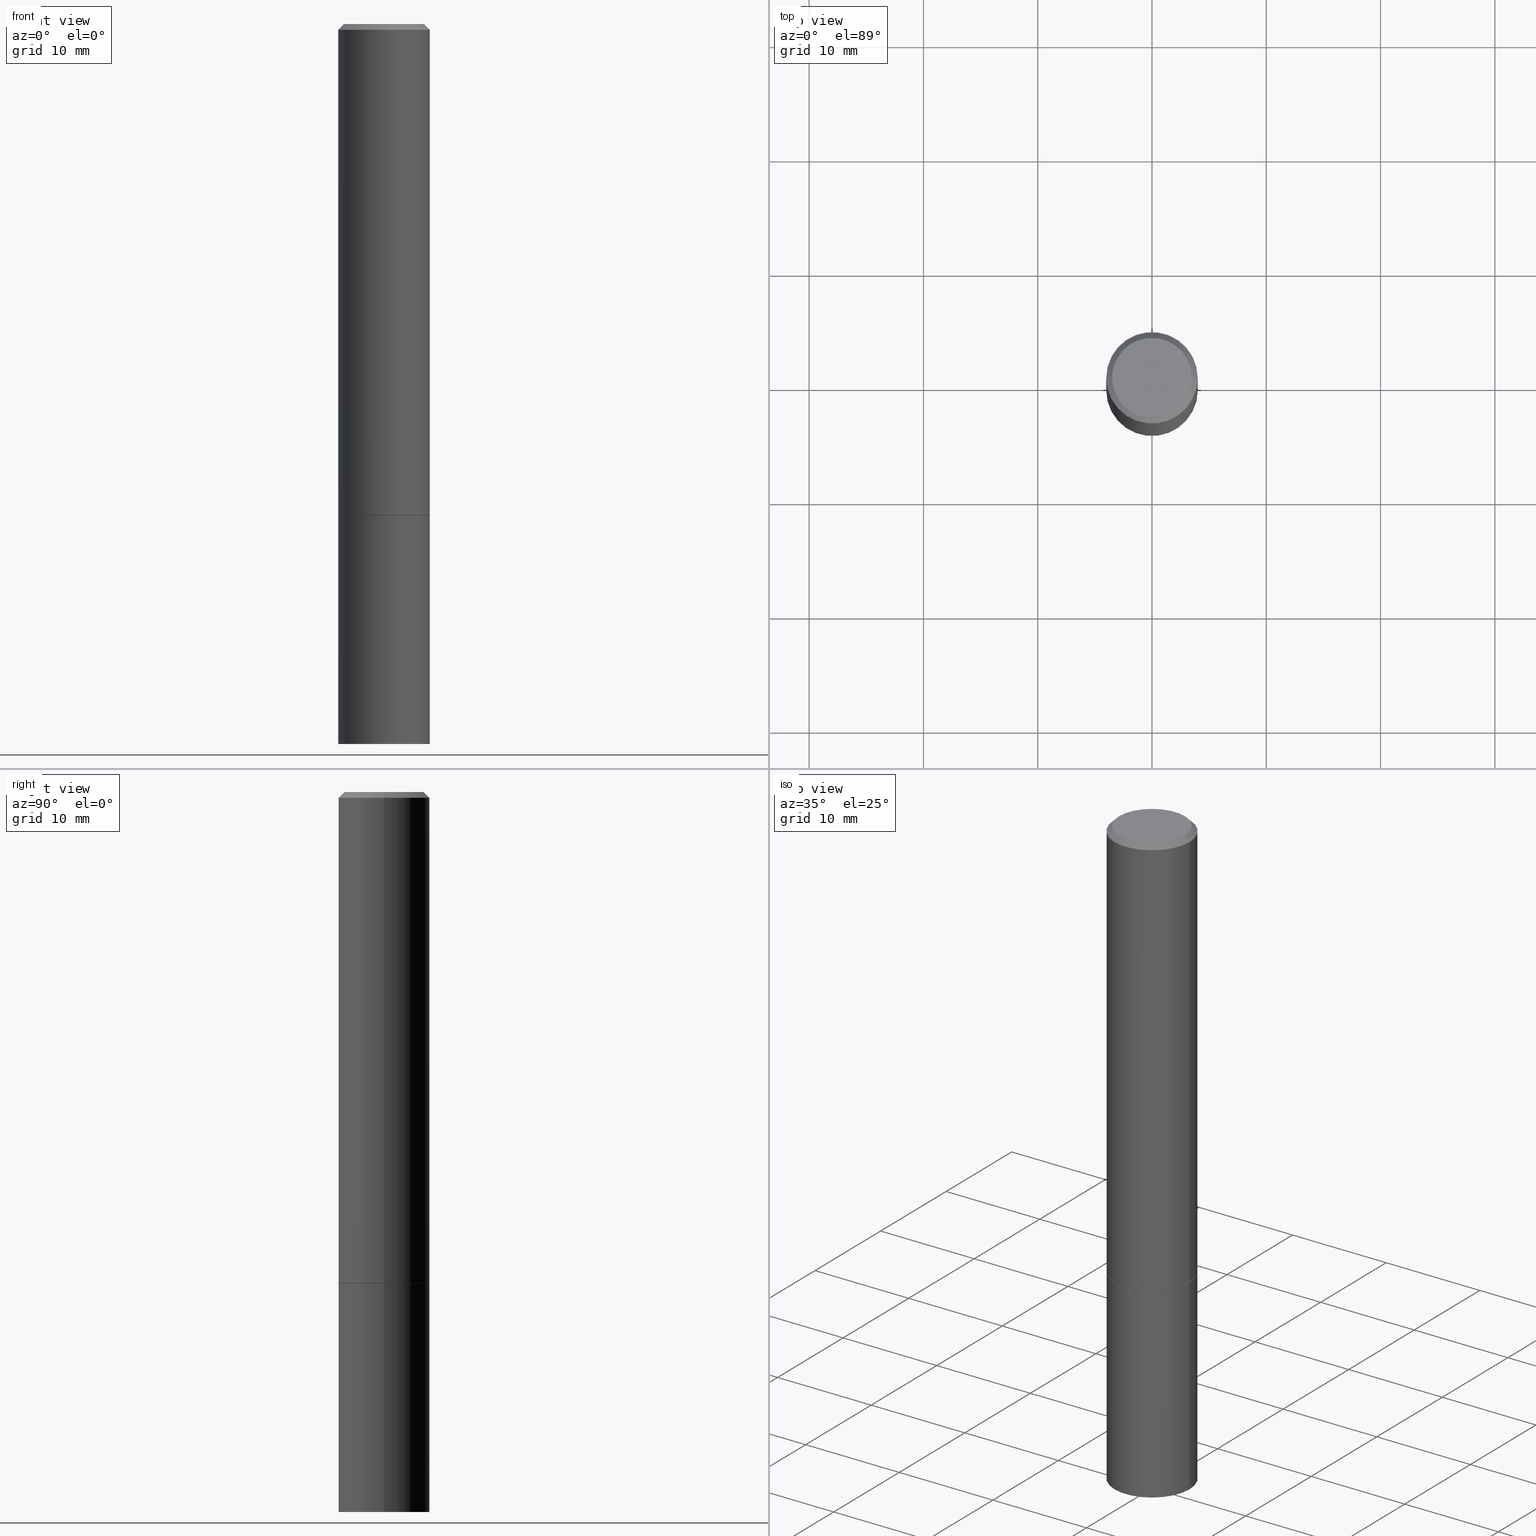
[diagram: canonical four-view strip — front | top / right | iso, engineering-drawing reading convention]
A machine part, canonical four-view strip (front | top / right | iso — engineering-drawing reading convention). The complete STEP part file that produces these views, byte-faithful:
ISO-10303-21;
HEADER;
FILE_DESCRIPTION (( 'STEP AP203' ),
    '1' );
FILE_NAME ('46621.STEP',
    '2024-02-28T10:56:42',
    ( '' ),
    ( '' ),
    'SwSTEP 2.0',
    'SolidWorks 2023',
    '' );
FILE_SCHEMA (( 'CONFIG_CONTROL_DESIGN' ));
ENDSEC;

DATA;
#1 = APPROVAL_STATUS ( 'not_yet_approved' ) ;
#2 = PERSON ( 'UNSPECIFIED', 'UNSPECIFIED', 'UNSPECIFIED', ('UNSPECIFIED'), ('UNSPECIFIED'), ('UNSPECIFIED') ) ;
#3 = DIRECTION ( 'NONE',  ( 1.000000000000000000, -6.982962677686268288E-15, 0.000000000000000000 ) ) ;
#4 = CARTESIAN_POINT ( 'NONE',  ( -1.043851414335219820E-46, 1.490343170380447200E-32, 4.268512490100411279E-18 ) ) ;
#5 = CONICAL_SURFACE ( 'NONE', #299, 0.1574999999999997513, 0.7853981633974471688 ) ;
#6 = APPROVAL_PERSON_ORGANIZATION ( #165, #107, #365 ) ;
#7 = PERSON_AND_ORGANIZATION ( #2, #42 ) ;
#8 = ORIENTED_EDGE ( 'NONE', *, *, #90, .T. ) ;
#9 = DIRECTION ( 'NONE',  ( 1.000000000000000000, -6.982962677686265922E-15, 4.876173381029109010E-29 ) ) ;
#10 = MANIFOLD_SOLID_BREP ( 'Body-Move/Copy2[1]', #191 ) ;
#11 = EDGE_CURVE ( 'NONE', #147, #144, #336, .T. ) ;
#12 = ORIENTED_EDGE ( 'NONE', *, *, #281, .F. ) ;
#13 = CARTESIAN_POINT ( 'NONE',  ( 0.1575000000000000011, -7.007053898924306337E-15, -1.691900000000000404 ) ) ;
#14 = FACE_OUTER_BOUND ( 'NONE', #22, .T. ) ;
#15 = DIRECTION ( 'NONE',  ( -2.445468806185136597E-29, 3.491481338843145583E-15, 1.000000000000000000 ) ) ;
#16 = VECTOR ( 'NONE', #65, 39.37007874015748143 ) ;
#17 = CIRCLE ( 'NONE', #242, 0.1565000000000000002 ) ;
#18 = CARTESIAN_POINT ( 'NONE',  ( 0.1574999999999997513, -1.150358061425877697E-15, -0.02000000000000003511 ) ) ;
#19 = DIRECTION ( 'NONE',  ( -2.438088387897960049E-29, 3.491481338843145188E-15, 1.000000000000000000 ) ) ;
#20 = DIRECTION ( 'NONE',  ( 1.000000000000000000, -6.982962677686266711E-15, 4.876176775795935793E-29 ) ) ;
#21 = EDGE_CURVE ( 'NONE', #223, #215, #97, .T. ) ;
#22 = EDGE_LOOP ( 'NONE', ( #247, #249, #246, #213 ) ) ;
#23 = CIRCLE ( 'NONE', #186, 0.1575000000000000011 ) ;
#24 =( NAMED_UNIT ( * ) SI_UNIT ( $, .STERADIAN. ) SOLID_ANGLE_UNIT ( ) );
#25 = EDGE_LOOP ( 'NONE', ( #286, #28 ) ) ;
#26 = APPROVAL_DATE_TIME ( #142, #171 ) ;
#27 = DIRECTION ( 'NONE',  ( 1.000000000000000000, -6.982962677686268288E-15, 0.000000000000000000 ) ) ;
#28 = ORIENTED_EDGE ( 'NONE', *, *, #21, .F. ) ;
#29 = ORIENTED_EDGE ( 'NONE', *, *, #102, .F. ) ;
#30 = CC_DESIGN_DATE_AND_TIME_ASSIGNMENT ( #361, #173, ( #160 ) ) ;
#31 = DIRECTION ( 'NONE',  ( 1.000000000000000000, -6.982962677686266711E-15, 4.876176775795935793E-29 ) ) ;
#32 = DIRECTION ( 'NONE',  ( 1.000000000000000000, -6.982962677686268288E-15, 0.000000000000000000 ) ) ;
#33 = ORIENTED_EDGE ( 'NONE', *, *, #217, .T. ) ;
#34 = DIRECTION ( 'NONE',  ( -2.445468806185136597E-29, 3.491481338843145583E-15, 1.000000000000000000 ) ) ;
#35 = VERTEX_POINT ( 'NONE', #62 ) ;
#36 = LINE ( 'NONE', #175, #208 ) ;
#37 = DESIGN_CONTEXT ( 'detailed design', #214, 'design' ) ;
#38 = CARTESIAN_POINT ( 'NONE',  ( 0.1575000000000000011, -9.759737786468242027E-15, -2.480300000000000171 ) ) ;
#39 = DIRECTION ( 'NONE',  ( -2.445468806185136597E-29, 3.491481338843145583E-15, 1.000000000000000000 ) ) ;
#40 = FACE_OUTER_BOUND ( 'NONE', #244, .T. ) ;
#41 = DIRECTION ( 'NONE',  ( 2.438088387897960049E-29, -3.491481338843145188E-15, -1.000000000000000000 ) ) ;
#42 = ORGANIZATION ( 'UNSPECIFIED', 'UNSPECIFIED', '' ) ;
#43 = PRODUCT_DEFINITION_SHAPE ( 'NONE', 'NONE',  #160 ) ;
#44 = AXIS2_PLACEMENT_3D ( 'NONE', #271, #294, #163 ) ;
#45 = FACE_OUTER_BOUND ( 'NONE', #87, .T. ) ;
#46 = DIRECTION ( 'NONE',  ( -1.000000000000000000, 6.982962677686265922E-15, -4.876176775795935793E-29 ) ) ;
#47 = PRODUCT_RELATED_PRODUCT_CATEGORY ( 'detail', '', ( #352 ) ) ;
#48 = FACE_OUTER_BOUND ( 'NONE', #188, .T. ) ;
#49 = COORDINATED_UNIVERSAL_TIME_OFFSET ( 5, 0, .BEHIND. ) ;
#50 = EDGE_CURVE ( 'NONE', #147, #35, #263, .T. ) ;
#51 = ADVANCED_FACE ( 'NONE', ( #14 ), #192, .T. ) ;
#52 = CARTESIAN_POINT ( 'NONE',  ( 4.139934141990818918E-29, -5.910728758527562653E-15, -1.692900000000000293 ) ) ;
#53 = CONICAL_SURFACE ( 'NONE', #238, 0.1574999999999997513, 0.7853981633974471688 ) ;
#54 = FACE_OUTER_BOUND ( 'NONE', #306, .T. ) ;
#55 = COORDINATED_UNIVERSAL_TIME_OFFSET ( 5, 0, .BEHIND. ) ;
#56 = APPROVAL_DATE_TIME ( #301, #107 ) ;
#57 = EDGE_CURVE ( 'NONE', #91, #80, #231, .T. ) ;
#58 = AXIS2_PLACEMENT_3D ( 'NONE', #95, #284, #200 ) ;
#59 = LOCAL_TIME ( 5, 56, 42.00000000000000000, #49 ) ;
#60 = APPROVAL_STATUS ( 'not_yet_approved' ) ;
#61 = APPROVAL_ROLE ( '' ) ;
#62 = CARTESIAN_POINT ( 'NONE',  ( -0.1374999999999997613, 9.950721815702909552E-16, 4.268512490093574228E-18 ) ) ;
#63 = LINE ( 'NONE', #260, #317 ) ;
#64 = ORIENTED_EDGE ( 'NONE', *, *, #157, .F. ) ;
#65 = DIRECTION ( 'NONE',  ( -2.445468806185136877E-29, 3.491481338843145188E-15, 1.000000000000000000 ) ) ;
#66 = EDGE_CURVE ( 'NONE', #109, #144, #341, .T. ) ;
#67 = ORIENTED_EDGE ( 'NONE', *, *, #332, .F. ) ;
#68 = DIRECTION ( 'NONE',  ( -1.000000000000000000, 6.982962677686265922E-15, -4.876176775795935793E-29 ) ) ;
#69 = CLOSED_SHELL ( 'NONE', ( #84, #302, #126, #290, #51, #320, #340, #110 ) ) ;
#70 = VERTEX_POINT ( 'NONE', #38 ) ;
#71 = CARTESIAN_POINT ( 'NONE',  ( 0.1374999999999997613, -1.046838268059730717E-15, 4.268512490107428597E-18 ) ) ;
#72 = CARTESIAN_POINT ( 'NONE',  ( 6.065496279980994755E-29, -8.659921164732655335E-15, -2.480300000000000171 ) ) ;
#73 = DIRECTION ( 'NONE',  ( -1.000000000000000000, 6.982962677686266711E-15, 0.000000000000000000 ) ) ;
#74 = CC_DESIGN_SECURITY_CLASSIFICATION ( #167, ( #222 ) ) ;
#75 = LOCAL_TIME ( 5, 56, 42.00000000000000000, #283 ) ;
#76 = DIRECTION ( 'NONE',  ( 2.438088387897960049E-29, -3.491481338843145188E-15, -1.000000000000000000 ) ) ;
#77 = CARTESIAN_POINT ( 'NONE',  ( -0.1575000000000000011, -6.166220152807950602E-15, -2.480300000000000171 ) ) ;
#78 = AXIS2_PLACEMENT_3D ( 'NONE', #181, #34, #145 ) ;
#79 = AXIS2_PLACEMENT_3D ( 'NONE', #334, #335, #114 ) ;
#80 = VERTEX_POINT ( 'NONE', #351 ) ;
#81 = AXIS2_PLACEMENT_3D ( 'NONE', #140, #253, #3 ) ;
#82 = ORIENTED_EDGE ( 'NONE', *, *, #57, .T. ) ;
#83 = SHAPE_DEFINITION_REPRESENTATION ( #43, #155 ) ;
#84 = ADVANCED_FACE ( 'NONE', ( #324 ), #221, .T. ) ;
#85 = COORDINATED_UNIVERSAL_TIME_OFFSET ( 5, 0, .BEHIND. ) ;
#86 = PERSON_AND_ORGANIZATION ( #2, #42 ) ;
#87 = EDGE_LOOP ( 'NONE', ( #272, #174, #288, #194 ) ) ;
#88 = CARTESIAN_POINT ( 'NONE',  ( -0.1574999999999997513, 1.029986994958722210E-15, -0.02000000000000003511 ) ) ;
#89 = AXIS2_PLACEMENT_3D ( 'NONE', #265, #19, #207 ) ;
#90 = EDGE_CURVE ( 'NONE', #357, #70, #322, .T. ) ;
#91 = VERTEX_POINT ( 'NONE', #347 ) ;
#92 = DIRECTION ( 'NONE',  ( -2.445468806185136597E-29, 3.491481338843145583E-15, 1.000000000000000000 ) ) ;
#93 = ORIENTED_EDGE ( 'NONE', *, *, #239, .T. ) ;
#94 = CARTESIAN_POINT ( 'NONE',  ( 9.601573681818598978E-16, 0.1374999999999997613, -4.779444278458815105E-16 ) ) ;
#95 = CARTESIAN_POINT ( 'NONE',  ( 4.139934141990818918E-29, -5.910728758527562653E-15, -1.692900000000000293 ) ) ;
#96 = CARTESIAN_POINT ( 'NONE',  ( 0.000000000000000000, 0.000000000000000000, 0.000000000000000000 ) ) ;
#97 = CIRCLE ( 'NONE', #58, 0.1565000000000000002 ) ;
#98 = FACE_OUTER_BOUND ( 'NONE', #190, .T. ) ;
#99 = APPROVAL ( #1, 'UNSPECIFIED' ) ;
#100 = CC_DESIGN_APPROVAL ( #171, ( #222 ) ) ;
#101 = APPROVAL_PERSON_ORGANIZATION ( #86, #99, #61 ) ;
#102 = EDGE_CURVE ( 'NONE', #35, #147, #202, .T. ) ;
#103 = CARTESIAN_POINT ( 'NONE',  ( 4.137488673184633315E-29, -5.907237277188718857E-15, -1.691900000000000404 ) ) ;
#104 = LENGTH_MEASURE_WITH_UNIT ( LENGTH_MEASURE( 0.02539999999999999897 ), #240 );
#105 = ORIENTED_EDGE ( 'NONE', *, *, #356, .T. ) ;
#106 = DIRECTION ( 'NONE',  ( -2.445468806185136597E-29, 3.491481338843145583E-15, 1.000000000000000000 ) ) ;
#107 = APPROVAL ( #250, 'UNSPECIFIED' ) ;
#108 = PERSON_AND_ORGANIZATION_ROLE ( 'creator' ) ;
#109 = VERTEX_POINT ( 'NONE', #13 ) ;
#110 = ADVANCED_FACE ( 'NONE', ( #258 ), #172, .F. ) ;
#111 = PERSON_AND_ORGANIZATION ( #2, #42 ) ;
#112 = APPLICATION_PROTOCOL_DEFINITION ( 'international standard', 'config_control_design', 1994, #214 ) ;
#113 = VERTEX_POINT ( 'NONE', #141 ) ;
#114 = DIRECTION ( 'NONE',  ( 1.000000000000000000, 0.000000000000000000, 0.000000000000000000 ) ) ;
#115 = CC_DESIGN_APPROVAL ( #99, ( #160 ) ) ;
#116 = CARTESIAN_POINT ( 'NONE',  ( 0.1574999999999997513, -1.150358061425877697E-15, -0.02000000000000003511 ) ) ;
#117 = CARTESIAN_POINT ( 'NONE',  ( 0.000000000000000000, 0.000000000000000000, 0.000000000000000000 ) ) ;
#118 = AXIS2_PLACEMENT_3D ( 'NONE', #4, #254, #9 ) ;
#119 = VECTOR ( 'NONE', #303, 39.37007874015748854 ) ;
#120 = APPROVAL_DATE_TIME ( #339, #99 ) ;
#121 = ORIENTED_EDGE ( 'NONE', *, *, #329, .F. ) ;
#122 = DIRECTION ( 'NONE',  ( -2.445468806185136877E-29, 3.491481338843145188E-15, 1.000000000000000000 ) ) ;
#123 = ORIENTED_EDGE ( 'NONE', *, *, #329, .T. ) ;
#124 = DIRECTION ( 'NONE',  ( -1.000000000000000000, 6.982962677686266711E-15, 0.000000000000000000 ) ) ;
#125 = DIRECTION ( 'NONE',  ( 1.000000000000000000, -6.982962677686266711E-15, 0.000000000000000000 ) ) ;
#126 = ADVANCED_FACE ( 'NONE', ( #98 ), #53, .T. ) ;
#127 = CARTESIAN_POINT ( 'NONE',  ( 4.890937612370281041E-31, -6.982962677686302702E-17, -0.02000000000000003511 ) ) ;
#128 = DIRECTION ( 'NONE',  ( -2.445468806185136597E-29, 3.491481338843145583E-15, 1.000000000000000000 ) ) ;
#129 = CIRCLE ( 'NONE', #166, 0.1575000000000000011 ) ;
#130 = DIRECTION ( 'NONE',  ( 2.438088387897960049E-29, -3.491481338843145188E-15, -1.000000000000000000 ) ) ;
#131 = MANIFOLD_SOLID_BREP ( 'Body-Move/Copy2[2]', #69 ) ;
#132 = AXIS2_PLACEMENT_3D ( 'NONE', #310, #170, #31 ) ;
#133 = DIRECTION ( 'NONE',  ( 1.000000000000000000, -6.982962677686267499E-15, 0.000000000000000000 ) ) ;
#134 = ORIENTED_EDGE ( 'NONE', *, *, #267, .F. ) ;
#135 = PLANE ( 'NONE',  #143 ) ;
#136 = CC_DESIGN_PERSON_AND_ORGANIZATION_ASSIGNMENT ( #111, #255, ( #222 ) ) ;
#137 = APPLICATION_PROTOCOL_DEFINITION ( 'international standard', 'config_control_design', 1994, #199 ) ;
#138 = AXIS2_PLACEMENT_3D ( 'NONE', #94, #41, #68 ) ;
#139 = PERSON_AND_ORGANIZATION_ROLE ( 'design_supplier' ) ;
#140 = CARTESIAN_POINT ( 'NONE',  ( 4.139934141990818918E-29, -5.910728758527562653E-15, -1.692900000000000293 ) ) ;
#141 = CARTESIAN_POINT ( 'NONE',  ( -0.1574999999999997513, 1.029986994958722210E-15, -0.02000000000000003511 ) ) ;
#142 = DATE_AND_TIME ( #363, #277 ) ;
#143 = AXIS2_PLACEMENT_3D ( 'NONE', #348, #76, #46 ) ;
#144 = VERTEX_POINT ( 'NONE', #18 ) ;
#145 = DIRECTION ( 'NONE',  ( 1.000000000000000000, -6.982962677686267499E-15, 0.000000000000000000 ) ) ;
#146 = AXIS2_PLACEMENT_3D ( 'NONE', #96, #203, #285 ) ;
#147 = VERTEX_POINT ( 'NONE', #71 ) ;
#148 = DIRECTION ( 'NONE',  ( 0.7071067811865232589, -2.468850131082003836E-15, 0.7071067811865715536 ) ) ;
#149 = EDGE_CURVE ( 'NONE', #35, #113, #224, .T. ) ;
#150 = EDGE_LOOP ( 'NONE', ( #196, #29, #218, #105 ) ) ;
#151 = CYLINDRICAL_SURFACE ( 'NONE', #146, 0.1575000000000000011 ) ;
#152 = CC_DESIGN_DATE_AND_TIME_ASSIGNMENT ( #225, #307, ( #167 ) ) ;
#153 = DIRECTION ( 'NONE',  ( 1.000000000000000000, -6.982962677686261977E-15, 0.000000000000000000 ) ) ;
#154 = VECTOR ( 'NONE', #148, 39.37007874015748854 ) ;
#155 = ADVANCED_BREP_SHAPE_REPRESENTATION ( '46621', ( #10, #131, #79 ), #233 ) ;
#156 = DIRECTION ( 'NONE',  ( 2.445468806185136597E-29, -3.491481338843145583E-15, -1.000000000000000000 ) ) ;
#157 = EDGE_CURVE ( 'NONE', #70, #357, #256, .T. ) ;
#158 = UNCERTAINTY_MEASURE_WITH_UNIT (LENGTH_MEASURE( 1.000000000000000082E-05 ), #350, 'distance_accuracy_value', 'NONE');
#159 = CARTESIAN_POINT ( 'NONE',  ( 1.099816621735628304E-15, 0.1574999999999940892, -1.692900000000000960 ) ) ;
#160 = PRODUCT_DEFINITION ( 'UNKNOWN', '', #222, #37 ) ;
#161 =( NAMED_UNIT ( * ) PLANE_ANGLE_UNIT ( ) SI_UNIT ( $, .RADIAN. ) );
#162 = ORIENTED_EDGE ( 'NONE', *, *, #50, .F. ) ;
#163 = DIRECTION ( 'NONE',  ( 1.000000000000000000, -6.982962677686267499E-15, 0.000000000000000000 ) ) ;
#164 = PERSON_AND_ORGANIZATION ( #2, #42 ) ;
#165 = PERSON_AND_ORGANIZATION ( #2, #42 ) ;
#166 = AXIS2_PLACEMENT_3D ( 'NONE', #342, #92, #195 ) ;
#167 = SECURITY_CLASSIFICATION ( '', '', #308 ) ;
#168 = CALENDAR_DATE ( 2024, 28, 2 ) ;
#169 = CALENDAR_DATE ( 2024, 28, 2 ) ;
#170 = DIRECTION ( 'NONE',  ( -2.445468806185136597E-29, 3.491481338843145583E-15, 1.000000000000000000 ) ) ;
#171 = APPROVAL ( #60, 'UNSPECIFIED' ) ;
#172 = PLANE ( 'NONE',  #138 ) ;
#173 = DATE_TIME_ROLE ( 'creation_date' ) ;
#174 = ORIENTED_EDGE ( 'NONE', *, *, #269, .T. ) ;
#175 = CARTESIAN_POINT ( 'NONE',  ( -0.1574999999999998901, 1.119104808822157012E-15, -7.747322767151471379E-30 ) ) ;
#176 = ORIENTED_EDGE ( 'NONE', *, *, #21, .T. ) ;
#177 = CARTESIAN_POINT ( 'NONE',  ( 0.1565000000000000002, -7.003562417585463330E-15, -1.692900000000000293 ) ) ;
#178 = ADVANCED_FACE ( 'NONE', ( #264 ), #193, .T. ) ;
#179 = ORIENTED_EDGE ( 'NONE', *, *, #211, .F. ) ;
#180 = CARTESIAN_POINT ( 'NONE',  ( 0.1565000000000000002, -7.003562417585463330E-15, -1.692900000000000293 ) ) ;
#181 = CARTESIAN_POINT ( 'NONE',  ( 4.139934141990818918E-29, -5.910728758527562653E-15, -1.692900000000000293 ) ) ;
#182 = VECTOR ( 'NONE', #333, 39.37007874015748143 ) ;
#183 = CC_DESIGN_APPROVAL ( #107, ( #167 ) ) ;
#184 = PLANE ( 'NONE',  #89 ) ;
#185 = DIRECTION ( 'NONE',  ( -1.000000000000000000, 6.982962677686265922E-15, -4.876176775795935793E-29 ) ) ;
#186 = AXIS2_PLACEMENT_3D ( 'NONE', #103, #128, #27 ) ;
#187 = AXIS2_PLACEMENT_3D ( 'NONE', #262, #15, #32 ) ;
#188 = EDGE_LOOP ( 'NONE', ( #93, #82 ) ) ;
#189 = CALENDAR_DATE ( 2024, 28, 2 ) ;
#190 = EDGE_LOOP ( 'NONE', ( #162, #364, #33, #343 ) ) ;
#191 = CLOSED_SHELL ( 'NONE', ( #198, #360, #296, #178 ) ) ;
#192 = CYLINDRICAL_SURFACE ( 'NONE', #132, 0.1574999999999998901 ) ;
#193 = CYLINDRICAL_SURFACE ( 'NONE', #309, 0.1575000000000000011 ) ;
#194 = ORIENTED_EDGE ( 'NONE', *, *, #66, .F. ) ;
#195 = DIRECTION ( 'NONE',  ( 1.000000000000000000, -6.982962677686268288E-15, 0.000000000000000000 ) ) ;
#196 = ORIENTED_EDGE ( 'NONE', *, *, #11, .F. ) ;
#197 = LINE ( 'NONE', #177, #154 ) ;
#198 = ADVANCED_FACE ( 'NONE', ( #40 ), #151, .T. ) ;
#199 = APPLICATION_CONTEXT ( 'configuration controlled 3d designs of mechanical parts and assemblies' ) ;
#200 = DIRECTION ( 'NONE',  ( 1.000000000000000000, -6.982962677686267499E-15, 0.000000000000000000 ) ) ;
#201 = CARTESIAN_POINT ( 'NONE',  ( 6.065496279980994755E-29, -8.659921164732655335E-15, -2.480300000000000171 ) ) ;
#202 = CIRCLE ( 'NONE', #118, 0.1374999999999997613 ) ;
#203 = DIRECTION ( 'NONE',  ( -2.445468806185136597E-29, 3.491481338843145583E-15, 1.000000000000000000 ) ) ;
#204 = VECTOR ( 'NONE', #321, 39.37007874015748143 ) ;
#205 = CONICAL_SURFACE ( 'NONE', #44, 0.1565000000000000002, 0.7853981633974141952 ) ;
#206 = DIRECTION ( 'NONE',  ( -2.445468806185136597E-29, 3.491481338843145583E-15, 1.000000000000000000 ) ) ;
#207 = DIRECTION ( 'NONE',  ( 1.000000000000000000, -6.982962677686265922E-15, 4.876176775795935793E-29 ) ) ;
#208 = VECTOR ( 'NONE', #287, 39.37007874015748143 ) ;
#209 = LOCAL_TIME ( 5, 56, 42.00000000000000000, #85 ) ;
#210 = ORIENTED_EDGE ( 'NONE', *, *, #281, .T. ) ;
#211 = EDGE_CURVE ( 'NONE', #70, #80, #63, .T. ) ;
#212 = EDGE_LOOP ( 'NONE', ( #358, #123, #257, #12 ) ) ;
#213 = ORIENTED_EDGE ( 'NONE', *, *, #356, .F. ) ;
#214 = APPLICATION_CONTEXT ( 'configuration controlled 3d designs of mechanical parts and assemblies' ) ;
#215 = VERTEX_POINT ( 'NONE', #180 ) ;
#216 = PERSON_AND_ORGANIZATION ( #2, #42 ) ;
#217 = EDGE_CURVE ( 'NONE', #144, #113, #304, .T. ) ;
#218 = ORIENTED_EDGE ( 'NONE', *, *, #149, .T. ) ;
#219 = APPROVAL_PERSON_ORGANIZATION ( #282, #171, #305 ) ;
#220 = MECHANICAL_CONTEXT ( 'NONE', #199, 'mechanical' ) ;
#221 = CONICAL_SURFACE ( 'NONE', #78, 0.1565000000000000002, 0.7853981633974141952 ) ;
#222 = PRODUCT_DEFINITION_FORMATION_WITH_SPECIFIED_SOURCE ( 'ANY', '', #352, .NOT_KNOWN. ) ;
#223 = VERTEX_POINT ( 'NONE', #228 ) ;
#224 = LINE ( 'NONE', #88, #204 ) ;
#225 = DATE_AND_TIME ( #168, #209 ) ;
#226 = PERSON_AND_ORGANIZATION_ROLE ( 'design_owner' ) ;
#227 = ORIENTED_EDGE ( 'NONE', *, *, #157, .T. ) ;
#228 = CARTESIAN_POINT ( 'NONE',  ( -0.1565000000000000002, -4.793430922714783655E-15, -1.692900000000000293 ) ) ;
#229 = ORIENTED_EDGE ( 'NONE', *, *, #50, .T. ) ;
#230 = CARTESIAN_POINT ( 'NONE',  ( -0.1575000000000000011, 1.119104808822157801E-15, -7.747322767151475583E-30 ) ) ;
#231 = CIRCLE ( 'NONE', #81, 0.1575000000000000011 ) ;
#232 = DIRECTION ( 'NONE',  ( 2.445468806185136597E-29, -3.491481338843145583E-15, -1.000000000000000000 ) ) ;
#233 =( GEOMETRIC_REPRESENTATION_CONTEXT ( 3 ) GLOBAL_UNCERTAINTY_ASSIGNED_CONTEXT ( ( #158 ) ) GLOBAL_UNIT_ASSIGNED_CONTEXT ( ( #350, #161, #24 ) ) REPRESENTATION_CONTEXT ( 'NONE', 'WORKASPACE' ) );
#234 = DIRECTION ( 'NONE',  ( 1.000000000000000000, -6.982962677686261977E-15, 0.000000000000000000 ) ) ;
#235 = CC_DESIGN_PERSON_AND_ORGANIZATION_ASSIGNMENT ( #7, #226, ( #352 ) ) ;
#236 = FACE_OUTER_BOUND ( 'NONE', #251, .T. ) ;
#237 = CARTESIAN_POINT ( 'NONE',  ( 0.000000000000000000, 0.000000000000000000, 0.000000000000000000 ) ) ;
#238 = AXIS2_PLACEMENT_3D ( 'NONE', #127, #232, #124 ) ;
#239 = EDGE_CURVE ( 'NONE', #80, #91, #353, .T. ) ;
#240 =( LENGTH_UNIT ( ) NAMED_UNIT ( * ) SI_UNIT ( $, .METRE. ) );
#241 = EDGE_CURVE ( 'NONE', #109, #274, #129, .T. ) ;
#242 = AXIS2_PLACEMENT_3D ( 'NONE', #52, #206, #133 ) ;
#243 = DIMENSIONAL_EXPONENTS ( 1.000000000000000000, 0.000000000000000000, 0.000000000000000000, 0.000000000000000000, 0.000000000000000000, 0.000000000000000000, 0.000000000000000000 ) ;
#244 = EDGE_LOOP ( 'NONE', ( #227, #259, #362, #179 ) ) ;
#245 = CYLINDRICAL_SURFACE ( 'NONE', #292, 0.1574999999999998901 ) ;
#246 = ORIENTED_EDGE ( 'NONE', *, *, #66, .T. ) ;
#247 = ORIENTED_EDGE ( 'NONE', *, *, #269, .F. ) ;
#248 = VECTOR ( 'NONE', #345, 39.37007874015748143 ) ;
#249 = ORIENTED_EDGE ( 'NONE', *, *, #332, .T. ) ;
#250 = APPROVAL_STATUS ( 'not_yet_approved' ) ;
#251 = EDGE_LOOP ( 'NONE', ( #64, #275 ) ) ;
#252 = PERSON_AND_ORGANIZATION ( #2, #42 ) ;
#253 = DIRECTION ( 'NONE',  ( -2.445468806185136597E-29, 3.491481338843145583E-15, 1.000000000000000000 ) ) ;
#254 = DIRECTION ( 'NONE',  ( -2.445468806185136597E-29, 3.491481338843145583E-15, 1.000000000000000000 ) ) ;
#255 = PERSON_AND_ORGANIZATION_ROLE ( 'creator' ) ;
#256 = CIRCLE ( 'NONE', #327, 0.1575000000000000011 ) ;
#257 = ORIENTED_EDGE ( 'NONE', *, *, #241, .F. ) ;
#258 = FACE_OUTER_BOUND ( 'NONE', #331, .T. ) ;
#259 = ORIENTED_EDGE ( 'NONE', *, *, #267, .T. ) ;
#260 = CARTESIAN_POINT ( 'NONE',  ( 0.1575000000000000011, -1.099816621735586889E-15, 7.679978421878598033E-30 ) ) ;
#261 = ORIENTED_EDGE ( 'NONE', *, *, #211, .T. ) ;
#262 = CARTESIAN_POINT ( 'NONE',  ( 4.139934141990818918E-29, -5.910728758527562653E-15, -1.692900000000000293 ) ) ;
#263 = CIRCLE ( 'NONE', #293, 0.1374999999999997613 ) ;
#264 = FACE_OUTER_BOUND ( 'NONE', #366, .T. ) ;
#265 = CARTESIAN_POINT ( 'NONE',  ( 4.139934141990818918E-29, -5.910728758527562653E-15, -1.692900000000000293 ) ) ;
#266 = CC_DESIGN_PERSON_AND_ORGANIZATION_ASSIGNMENT ( #164, #139, ( #222 ) ) ;
#267 = EDGE_CURVE ( 'NONE', #357, #91, #314, .T. ) ;
#268 = PLANE ( 'NONE',  #328 ) ;
#269 = EDGE_CURVE ( 'NONE', #274, #113, #36, .T. ) ;
#270 = AXIS2_PLACEMENT_3D ( 'NONE', #72, #291, #234 ) ;
#271 = CARTESIAN_POINT ( 'NONE',  ( 4.139934141990818918E-29, -5.910728758527562653E-15, -1.692900000000000293 ) ) ;
#272 = ORIENTED_EDGE ( 'NONE', *, *, #241, .T. ) ;
#273 = DIRECTION ( 'NONE',  ( -2.445468806185136597E-29, 3.491481338843145583E-15, 1.000000000000000000 ) ) ;
#274 = VERTEX_POINT ( 'NONE', #344 ) ;
#275 = ORIENTED_EDGE ( 'NONE', *, *, #90, .F. ) ;
#276 = PERSON_AND_ORGANIZATION_ROLE ( 'classification_officer' ) ;
#277 = LOCAL_TIME ( 5, 56, 42.00000000000000000, #55 ) ;
#278 = CC_DESIGN_PERSON_AND_ORGANIZATION_ASSIGNMENT ( #216, #276, ( #167 ) ) ;
#279 = DIRECTION ( 'NONE',  ( 1.000000000000000000, -6.982962677686265922E-15, 4.876173381029109010E-29 ) ) ;
#280 = DIRECTION ( 'NONE',  ( -2.445468806185136597E-29, 3.491481338843145583E-15, 1.000000000000000000 ) ) ;
#281 = EDGE_CURVE ( 'NONE', #215, #109, #197, .T. ) ;
#282 = PERSON_AND_ORGANIZATION ( #2, #42 ) ;
#283 = COORDINATED_UNIVERSAL_TIME_OFFSET ( 5, 0, .BEHIND. ) ;
#284 = DIRECTION ( 'NONE',  ( -2.445468806185136597E-29, 3.491481338843145583E-15, 1.000000000000000000 ) ) ;
#285 = DIRECTION ( 'NONE',  ( 1.000000000000000000, -6.982962677686265922E-15, 4.876176775795935232E-29 ) ) ;
#286 = ORIENTED_EDGE ( 'NONE', *, *, #349, .F. ) ;
#287 = DIRECTION ( 'NONE',  ( -2.445468806185136877E-29, 3.491481338843145188E-15, 1.000000000000000000 ) ) ;
#288 = ORIENTED_EDGE ( 'NONE', *, *, #217, .F. ) ;
#289 = CARTESIAN_POINT ( 'NONE',  ( 4.890937612370281041E-31, -6.982962677686302702E-17, -0.02000000000000003511 ) ) ;
#290 = ADVANCED_FACE ( 'NONE', ( #346 ), #5, .T. ) ;
#291 = DIRECTION ( 'NONE',  ( -2.445468806185136597E-29, 3.491481338843145583E-15, 1.000000000000000000 ) ) ;
#292 = AXIS2_PLACEMENT_3D ( 'NONE', #237, #273, #20 ) ;
#293 = AXIS2_PLACEMENT_3D ( 'NONE', #318, #39, #279 ) ;
#294 = DIRECTION ( 'NONE',  ( -2.445468806185136597E-29, 3.491481338843145583E-15, 1.000000000000000000 ) ) ;
#295 = AXIS2_PLACEMENT_3D ( 'NONE', #326, #106, #325 ) ;
#296 = ADVANCED_FACE ( 'NONE', ( #48 ), #268, .F. ) ;
#297 = CARTESIAN_POINT ( 'NONE',  ( 4.890937612370281041E-31, -6.982962677686302702E-17, -0.02000000000000003511 ) ) ;
#298 = AXIS2_PLACEMENT_3D ( 'NONE', #289, #280, #125 ) ;
#299 = AXIS2_PLACEMENT_3D ( 'NONE', #297, #156, #73 ) ;
#300 = CALENDAR_DATE ( 2024, 28, 2 ) ;
#301 = DATE_AND_TIME ( #300, #59 ) ;
#302 = ADVANCED_FACE ( 'NONE', ( #45 ), #245, .T. ) ;
#303 = DIRECTION ( 'NONE',  ( -0.7071067811865232589, 7.493145998870265808E-15, 0.7071067811865715536 ) ) ;
#304 = CIRCLE ( 'NONE', #298, 0.1574999999999997513 ) ;
#305 = APPROVAL_ROLE ( '' ) ;
#306 = EDGE_LOOP ( 'NONE', ( #121, #176, #210, #67 ) ) ;
#307 = DATE_TIME_ROLE ( 'classification_date' ) ;
#308 = SECURITY_CLASSIFICATION_LEVEL ( 'unclassified' ) ;
#309 = AXIS2_PLACEMENT_3D ( 'NONE', #117, #319, #311 ) ;
#310 = CARTESIAN_POINT ( 'NONE',  ( 0.000000000000000000, 0.000000000000000000, 0.000000000000000000 ) ) ;
#311 = DIRECTION ( 'NONE',  ( 1.000000000000000000, -6.982962677686265922E-15, 4.876176775795935232E-29 ) ) ;
#312 = COORDINATED_UNIVERSAL_TIME_OFFSET ( 5, 0, .BEHIND. ) ;
#313 = CARTESIAN_POINT ( 'NONE',  ( 0.1574999999999998901, -1.099816621735586297E-15, 7.679978421878593829E-30 ) ) ;
#314 = LINE ( 'NONE', #230, #16 ) ;
#315 = ORIENTED_EDGE ( 'NONE', *, *, #57, .F. ) ;
#316 = DIRECTION ( 'NONE',  ( -2.445468806185136597E-29, 3.491481338843145583E-15, 1.000000000000000000 ) ) ;
#317 = VECTOR ( 'NONE', #122, 39.37007874015748143 ) ;
#318 = CARTESIAN_POINT ( 'NONE',  ( -1.043851414335219820E-46, 1.490343170380447200E-32, 4.268512490100411279E-18 ) ) ;
#319 = DIRECTION ( 'NONE',  ( -2.445468806185136597E-29, 3.491481338843145583E-15, 1.000000000000000000 ) ) ;
#320 = ADVANCED_FACE ( 'NONE', ( #54 ), #205, .T. ) ;
#321 = DIRECTION ( 'NONE',  ( -0.7071067811865466846, 2.468850131082247989E-15, -0.7071067811865483499 ) ) ;
#322 = CIRCLE ( 'NONE', #270, 0.1575000000000000011 ) ;
#323 = CC_DESIGN_PERSON_AND_ORGANIZATION_ASSIGNMENT ( #252, #108, ( #160 ) ) ;
#324 = FACE_OUTER_BOUND ( 'NONE', #212, .T. ) ;
#325 = DIRECTION ( 'NONE',  ( 1.000000000000000000, -6.982962677686266711E-15, 0.000000000000000000 ) ) ;
#326 = CARTESIAN_POINT ( 'NONE',  ( 4.890937612370281041E-31, -6.982962677686302702E-17, -0.02000000000000003511 ) ) ;
#327 = AXIS2_PLACEMENT_3D ( 'NONE', #201, #316, #153 ) ;
#328 = AXIS2_PLACEMENT_3D ( 'NONE', #159, #130, #185 ) ;
#329 = EDGE_CURVE ( 'NONE', #223, #274, #359, .T. ) ;
#330 = ORIENTED_EDGE ( 'NONE', *, *, #102, .T. ) ;
#331 = EDGE_LOOP ( 'NONE', ( #330, #229 ) ) ;
#332 = EDGE_CURVE ( 'NONE', #274, #109, #23, .T. ) ;
#333 = DIRECTION ( 'NONE',  ( -2.445468806185136877E-29, 3.491481338843145188E-15, 1.000000000000000000 ) ) ;
#334 = CARTESIAN_POINT ( 'NONE',  ( 0.000000000000000000, 0.000000000000000000, 0.000000000000000000 ) ) ;
#335 = DIRECTION ( 'NONE',  ( 0.000000000000000000, 0.000000000000000000, 1.000000000000000000 ) ) ;
#336 = LINE ( 'NONE', #116, #248 ) ;
#337 = LOCAL_TIME ( 5, 56, 42.00000000000000000, #312 ) ;
#338 = CIRCLE ( 'NONE', #295, 0.1574999999999997513 ) ;
#339 = DATE_AND_TIME ( #169, #75 ) ;
#340 = ADVANCED_FACE ( 'NONE', ( #355 ), #184, .F. ) ;
#341 = LINE ( 'NONE', #313, #182 ) ;
#342 = CARTESIAN_POINT ( 'NONE',  ( 4.137488673184633315E-29, -5.907237277188718857E-15, -1.691900000000000404 ) ) ;
#343 = ORIENTED_EDGE ( 'NONE', *, *, #149, .F. ) ;
#344 = CARTESIAN_POINT ( 'NONE',  ( -0.1575000000000000011, -1.869428643160631107E-15, -1.691900000000000404 ) ) ;
#345 = DIRECTION ( 'NONE',  ( 0.7071067811865466846, -7.319954787623252890E-15, -0.7071067811865483499 ) ) ;
#346 = FACE_OUTER_BOUND ( 'NONE', #150, .T. ) ;
#347 = CARTESIAN_POINT ( 'NONE',  ( -0.1575000000000000011, -6.166220152807950602E-15, -1.692900000000000293 ) ) ;
#348 = CARTESIAN_POINT ( 'NONE',  ( 1.099816621735647434E-15, 0.1574999999999913136, -2.480300000000001059 ) ) ;
#349 = EDGE_CURVE ( 'NONE', #215, #223, #17, .T. ) ;
#350 =( CONVERSION_BASED_UNIT ( 'INCH', #104 ) LENGTH_UNIT ( ) NAMED_UNIT ( #243 ) );
#351 = CARTESIAN_POINT ( 'NONE',  ( 0.1575000000000000011, -7.010545380263150133E-15, -1.692900000000000293 ) ) ;
#352 = PRODUCT ( '46621', '46621', '', ( #220 ) ) ;
#353 = CIRCLE ( 'NONE', #187, 0.1575000000000000011 ) ;
#354 = CARTESIAN_POINT ( 'NONE',  ( -0.1565000000000000002, -4.798729377063006057E-15, -1.692900000000000293 ) ) ;
#355 = FACE_OUTER_BOUND ( 'NONE', #25, .T. ) ;
#356 = EDGE_CURVE ( 'NONE', #113, #144, #338, .T. ) ;
#357 = VERTEX_POINT ( 'NONE', #77 ) ;
#358 = ORIENTED_EDGE ( 'NONE', *, *, #349, .T. ) ;
#359 = LINE ( 'NONE', #354, #119 ) ;
#360 = ADVANCED_FACE ( 'NONE', ( #236 ), #135, .T. ) ;
#361 = DATE_AND_TIME ( #189, #337 ) ;
#362 = ORIENTED_EDGE ( 'NONE', *, *, #239, .F. ) ;
#363 = CALENDAR_DATE ( 2024, 28, 2 ) ;
#364 = ORIENTED_EDGE ( 'NONE', *, *, #11, .T. ) ;
#365 = APPROVAL_ROLE ( '' ) ;
#366 = EDGE_LOOP ( 'NONE', ( #134, #8, #261, #315 ) ) ;
ENDSEC;
END-ISO-10303-21;
